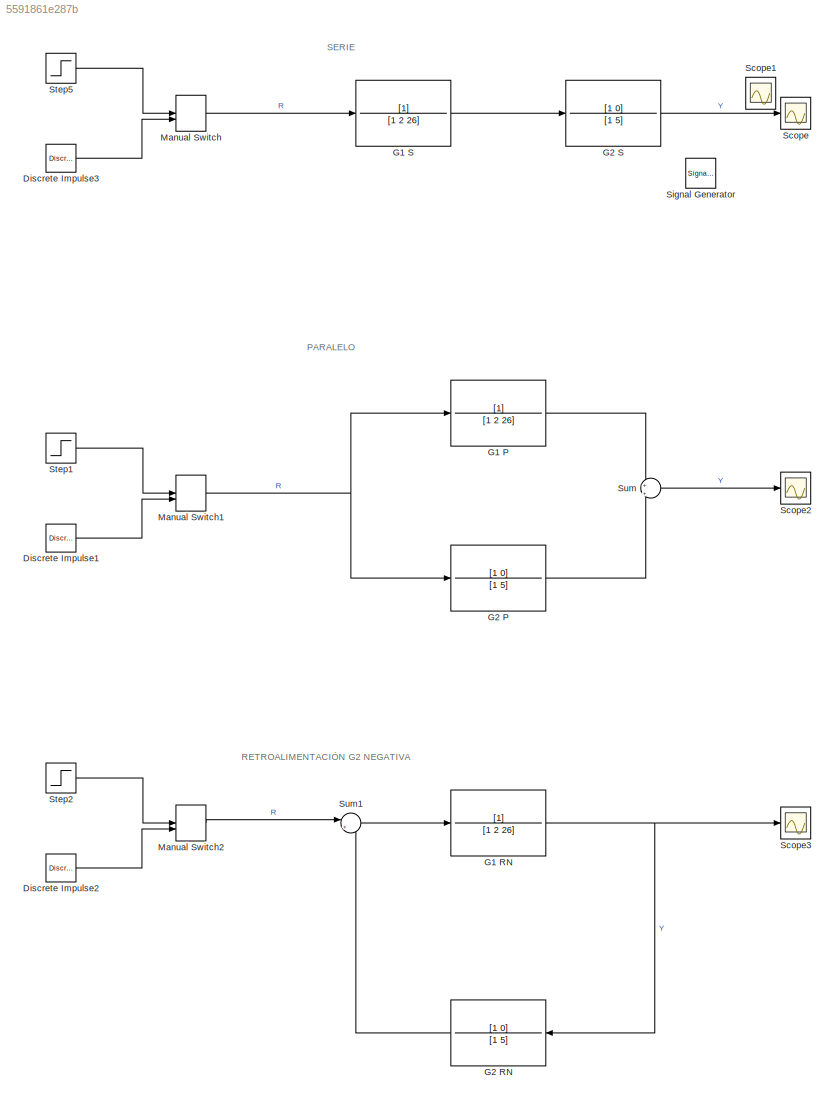
MODEL slx_5591861e287b
KIND model
CONFIG AbsTol = auto
CONFIG EnableMultiTasking = off
CONFIG FixedStep = auto
CONFIG MaxStep = auto
CONFIG MinStep = auto
CONFIG RelTol = 1e-3
CONFIG SampleTimeConstraint = Unconstrained
CONFIG Solver = VariableStepAuto
CONFIG SolverName = VariableStepAuto
CONFIG StartTime = 0
CONFIG StopTime = 8
BLOCK [Reference] Discrete Impulse1  REF=dspsrcs4/Discrete 
Impulse
  Ports = [0, 1]
  SourceBlock = dspsrcs4/Discrete \nImpulse
  SourceProductBaseCode = DS
  SourceProductName = DSP System Toolbox
  SourceType = Discrete Impulse
BLOCK [Reference] Discrete Impulse2  REF=dspsrcs4/Discrete 
Impulse
  Ports = [0, 1]
  SourceBlock = dspsrcs4/Discrete \nImpulse
  SourceProductBaseCode = DS
  SourceProductName = DSP System Toolbox
  SourceType = Discrete Impulse
BLOCK [Reference] Discrete Impulse3  REF=dspsrcs4/Discrete 
Impulse
  Ports = [0, 1]
  SourceBlock = dspsrcs4/Discrete \nImpulse
  SourceProductBaseCode = DS
  SourceProductName = DSP System Toolbox
  SourceType = Discrete Impulse
BLOCK [TransferFcn] G1 P
  Denominator = [1 2 26]
BLOCK [TransferFcn] G1 RN
  Denominator = [1 2 26]
BLOCK [TransferFcn] G1 S
  Denominator = [1 2 26]
BLOCK [TransferFcn] G2 P
  Denominator = [1 5]
  Numerator = [1 0]
BLOCK [TransferFcn] G2 RN
  Denominator = [1 5]
  Numerator = [1 0]
BLOCK [TransferFcn] G2 S
  Denominator = [1 5]
  Numerator = [1 0]
BLOCK [ManualSwitch] Manual Switch
  CurrentSetting = 0
BLOCK [ManualSwitch] Manual Switch1
BLOCK [ManualSwitch] Manual Switch2
  CurrentSetting = 0
BLOCK [Scope] Scope
  Floating = off
  NumInputPorts = 1
  Ports = [1]
  ScopeSpecificationString = Simulink.scopes.TimeScopeBlockCfg('CurrentConfiguration', extmgr.ConfigurationSet(extmgr.Configuration('Core','General UI',true),extmgr.Configuration('Core','Source UI',true),extmgr.Configuration('Sources','WiredSimulink',true),extmgr.Configuration('Visuals','Time Domain',true,'SerializedDisplays',{struct('MinYLimReal','-0.00963','MaxYLimReal','0.00967','YLabelReal','','MinYLimMag','0.00000','MaxY...<+1350ch>
BLOCK [Scope] Scope1
  Floating = off
  IOType = viewer
  NumInputPorts = 1
  Ports = []
  ScopeSpecificationString = Simulink.scopes.TimeScopeBlockCfg('CurrentConfiguration', extmgr.ConfigurationSet(extmgr.Configuration('Core','General UI',true),extmgr.Configuration('Core','Source UI',true),extmgr.Configuration('Sources','WiredSimulink',true,'DataLoggingVariableName','ScopeData1'),extmgr.Configuration('Visuals','Time Domain',true,'SerializedDisplays',{struct('MinYLimReal','-0.12612','MaxYLimReal','1.12512','YLab...<+1405ch>
BLOCK [Scope] Scope2
  Floating = off
  NumInputPorts = 1
  Ports = [1]
  ScopeSpecificationString = Simulink.scopes.TimeScopeBlockCfg('CurrentConfiguration', extmgr.ConfigurationSet(extmgr.Configuration('Core','General UI',true),extmgr.Configuration('Core','Source UI',true),extmgr.Configuration('Sources','WiredSimulink',true,'DataLoggingVariableName','ScopeData2'),extmgr.Configuration('Visuals','Time Domain',true,'SerializedDisplays',{struct('MinYLimReal','-0.5625','MaxYLimReal','1.17361','YLabe...<+1387ch>
BLOCK [Scope] Scope3
  Floating = off
  NumInputPorts = 1
  Ports = [1]
  ScopeSpecificationString = Simulink.scopes.TimeScopeBlockCfg('CurrentConfiguration', extmgr.ConfigurationSet(extmgr.Configuration('Core','General UI',true),extmgr.Configuration('Core','Source UI',true),extmgr.Configuration('Sources','WiredSimulink',true,'DataLoggingVariableName','ScopeData3'),extmgr.Configuration('Visuals','Time Domain',true,'SerializedDisplays',{struct('MinYLimReal','-0.01','MaxYLimReal','0.01721','YLabelR...<+1383ch>
BLOCK [SignalGenerator] Signal Generator
  IOType = siggen
  Ports = [0, 1]
BLOCK [Step] Step1
  SampleTime = 0
  Time = 0
BLOCK [Step] Step2
  SampleTime = 0
  Time = 0
BLOCK [Step] Step5
  SampleTime = 0
  Time = 0
BLOCK [Sum] Sum
  IconShape = round
  InputSameDT = off
  Inputs = +|+
  OutDataTypeStr = Inherit: Inherit via internal rule
  Ports = [2, 1]
  SaturateOnIntegerOverflow = off
BLOCK [Sum] Sum1
  IconShape = round
  InputSameDT = off
  Inputs = |+-
  OutDataTypeStr = Inherit: Inherit via internal rule
  Ports = [2, 1]
  SaturateOnIntegerOverflow = off
ANNOTATION (root): PARALELO
ANNOTATION (root): RETROALIMENTACIÓN G2 NEGATIVA
ANNOTATION (root): SERIE
LINE Discrete Impulse1:1 -> Manual Switch1:2
LINE Discrete Impulse2:1 -> Manual Switch2:2
LINE Discrete Impulse3:1 -> Manual Switch:2
LINE G1 P:1 -> Sum:1
NET G1 RN:1 -> G2 RN:1, Scope3:1
LINE G1 S:1 -> G2 S:1
LINE G2 P:1 -> Sum:2
LINE G2 RN:1 -> Sum1:2
LINE G2 S:1 -> Scope:1
NET Manual Switch1:1 -> G1 P:1, G2 P:1
LINE Manual Switch2:1 -> Sum1:1
LINE Manual Switch:1 -> G1 S:1
LINE Step1:1 -> Manual Switch1:1
LINE Step2:1 -> Manual Switch2:1
LINE Step5:1 -> Manual Switch:1
LINE Sum1:1 -> G1 RN:1
LINE Sum:1 -> Scope2:1
note: NET lines group one-source signal fan-out (src -> all destinations, sorted); 1:1 wires keep LINE
